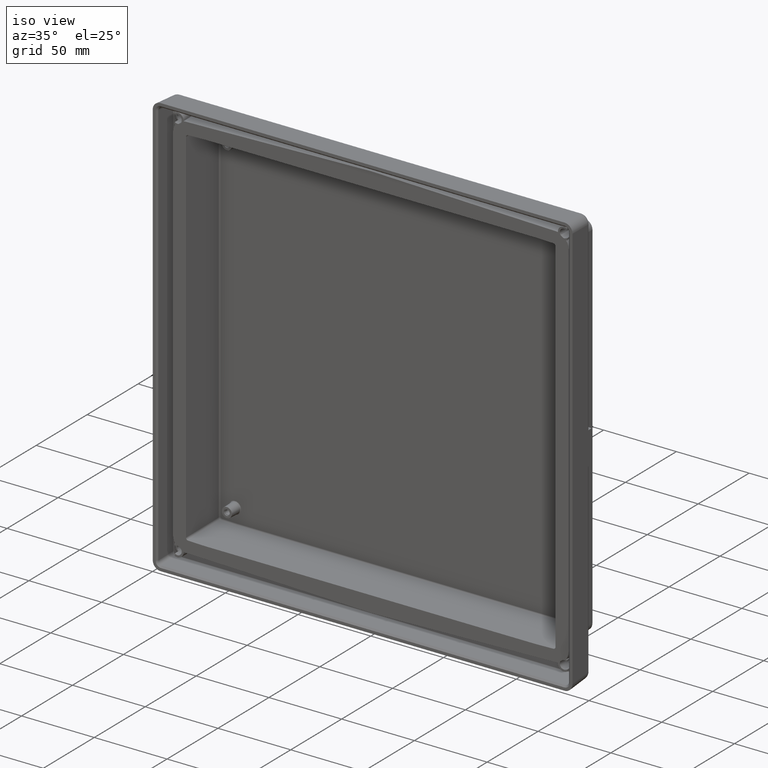
[diagram: clean part render]
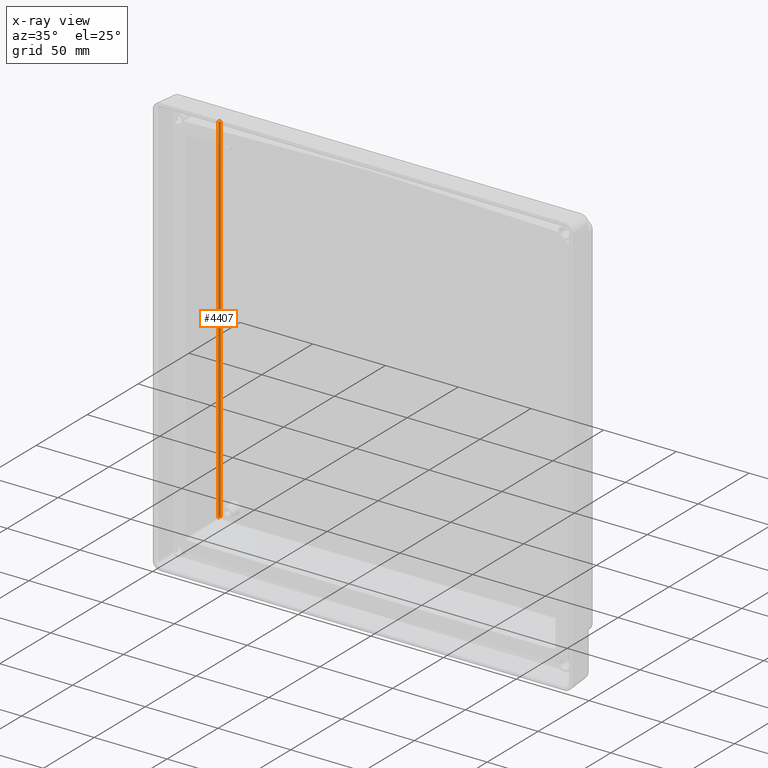
[diagram: x-ray — body ghosted, one internal face saturated and labeled with its STEP entity id]
A machine part, iso view, then the same camera in x-ray: the body is ghosted and one INTERNAL B-rep face — a face not visible from any outside direction — is saturated and labeled: STEP entity #4407.
In plain terms, the highlighted cylindrical surface (edge-blend (fillet) strip) has radius 1 mm, axis along (0, 0, -1).
Its self-contained STEP definition (entity closure, byte-faithful):
#4375 = VERTEX_POINT ( 'NONE', #15368 ) ;
#4376 = EDGE_CURVE ( 'NONE', #4375, #4390, #15367, .T. ) ;
#4390 = VERTEX_POINT ( 'NONE', #15439 ) ;
#4392 = ORIENTED_EDGE ( 'NONE', *, *, #4376, .T. ) ;
#4393 = VERTEX_POINT ( 'NONE', #15427 ) ;
#4394 = EDGE_CURVE ( 'NONE', #4375, #4396, #15438, .T. ) ;
#4396 = VERTEX_POINT ( 'NONE', #15476 ) ;
#4405 = ORIENTED_EDGE ( 'NONE', *, *, #4394, .F. ) ;
#4407 = ADVANCED_FACE ( 'NONE', ( #15466 ), #15458, .F. ) ;
#4410 = EDGE_LOOP ( 'NONE', ( #4422, #4405, #4392, #4432 ) ) ;
#4422 = ORIENTED_EDGE ( 'NONE', *, *, #4423, .T. ) ;
#4423 = EDGE_CURVE ( 'NONE', #4393, #4396, #15535, .T. ) ;
#4432 = ORIENTED_EDGE ( 'NONE', *, *, #4435, .F. ) ;
#4435 = EDGE_CURVE ( 'NONE', #4393, #4390, #15575, .T. ) ;
#15362 = CARTESIAN_POINT ( 'NONE',  ( -125.4388854208685900, 29.90506079587844800, 122.9272232616049900 ) ) ;
#15363 = CARTESIAN_POINT ( 'NONE',  ( -125.3254279230858300, 30.15116979346040400, 122.9272232616049900 ) ) ;
#15364 = CARTESIAN_POINT ( 'NONE',  ( -124.9582830277594200, 30.49957784785768300, 122.9272232616050100 ) ) ;
#15365 = CARTESIAN_POINT ( 'NONE',  ( -124.7065735679442900, 30.59999990884790200, 122.9272232616049900 ) ) ;
#15366 = CARTESIAN_POINT ( 'NONE',  ( -124.4535003197779900, 30.59999999999999800, 122.9272232616049900 ) ) ;
#15367 = B_SPLINE_CURVE_WITH_KNOTS ( 'NONE', 3,
 ( #15366, #15365, #15364, #15363, #15362, #15404 ),
 .UNSPECIFIED., .F., .F.,
 ( 4, 2, 4 ),
 ( 0.0000000000000000000, 0.5000000000000000000, 1.000000000000000000 ),
 .UNSPECIFIED. ) ;
#15368 = CARTESIAN_POINT ( 'NONE',  ( -124.4535003197779900, 30.59999999999999800, 122.9272232616049900 ) ) ;
#15404 = CARTESIAN_POINT ( 'NONE',  ( -125.4521298545326600, 29.65233595624298200, 122.9272232616051500 ) ) ;
#15427 = CARTESIAN_POINT ( 'NONE',  ( -125.4521298545334700, 29.65233595624303900, -122.9272232616052900 ) ) ;
#15438 = LINE ( 'NONE', #15479, #15478 ) ;
#15439 = CARTESIAN_POINT ( 'NONE',  ( -125.4521298545326600, 29.65233595624298200, 122.9272232616051500 ) ) ;
#15455 = DIRECTION ( 'NONE',  ( -1.000000000000000000, 0.0000000000000000000, 0.0000000000000000000 ) ) ;
#15456 = DIRECTION ( 'NONE',  ( 0.0000000000000000000, 0.0000000000000000000, -1.000000000000000000 ) ) ;
#15457 = AXIS2_PLACEMENT_3D ( 'NONE', #15465, #15456, #15455 ) ;
#15458 = CYLINDRICAL_SURFACE ( 'NONE', #15457, 1.000000000000000900 ) ;
#15465 = CARTESIAN_POINT ( 'NONE',  ( -124.4535003197780000, 29.59999999999999800, 129.5000000000000000 ) ) ;
#15466 = FACE_OUTER_BOUND ( 'NONE', #4410, .T. ) ;
#15476 = CARTESIAN_POINT ( 'NONE',  ( -124.4535003197779900, 30.59999999999999800, -122.9272232616049800 ) ) ;
#15477 = DIRECTION ( 'NONE',  ( 0.0000000000000000000, 0.0000000000000000000, -1.000000000000000000 ) ) ;
#15478 = VECTOR ( 'NONE', #15477, 1000.000000000000000 ) ;
#15479 = CARTESIAN_POINT ( 'NONE',  ( -124.4535003197779900, 30.59999999999999800, 6.938893903907228400E-015 ) ) ;
#15525 = CARTESIAN_POINT ( 'NONE',  ( -124.4535003197779900, 30.59999999999999800, -122.9272232616049800 ) ) ;
#15526 = CARTESIAN_POINT ( 'NONE',  ( -124.7065730613171600, 30.60000000000000900, -122.9272232616052600 ) ) ;
#15527 = CARTESIAN_POINT ( 'NONE',  ( -124.9582824147574100, 30.49957815063415400, -122.9272232616052800 ) ) ;
#15528 = CARTESIAN_POINT ( 'NONE',  ( -125.3254273761861000, 30.15117059139046100, -122.9272232616052600 ) ) ;
#15529 = CARTESIAN_POINT ( 'NONE',  ( -125.4388850506051100, 29.90506187038531700, -122.9272232616052900 ) ) ;
#15530 = CARTESIAN_POINT ( 'NONE',  ( -125.4521298545334700, 29.65233595624303900, -122.9272232616052900 ) ) ;
#15535 = B_SPLINE_CURVE_WITH_KNOTS ( 'NONE', 3,
 ( #15530, #15529, #15528, #15527, #15526, #15525 ),
 .UNSPECIFIED., .F., .F.,
 ( 4, 2, 4 ),
 ( 0.0000000000000000000, 0.5000000000000099900, 1.000000000000000000 ),
 .UNSPECIFIED. ) ;
#15572 = DIRECTION ( 'NONE',  ( 0.0000000000000000000, 0.0000000000000000000, 1.000000000000000000 ) ) ;
#15573 = VECTOR ( 'NONE', #15572, 1000.000000000000000 ) ;
#15574 = CARTESIAN_POINT ( 'NONE',  ( -125.4521298545325900, 29.65233595624287600, 2.081668171172168500E-014 ) ) ;
#15575 = LINE ( 'NONE', #15574, #15573 ) ;